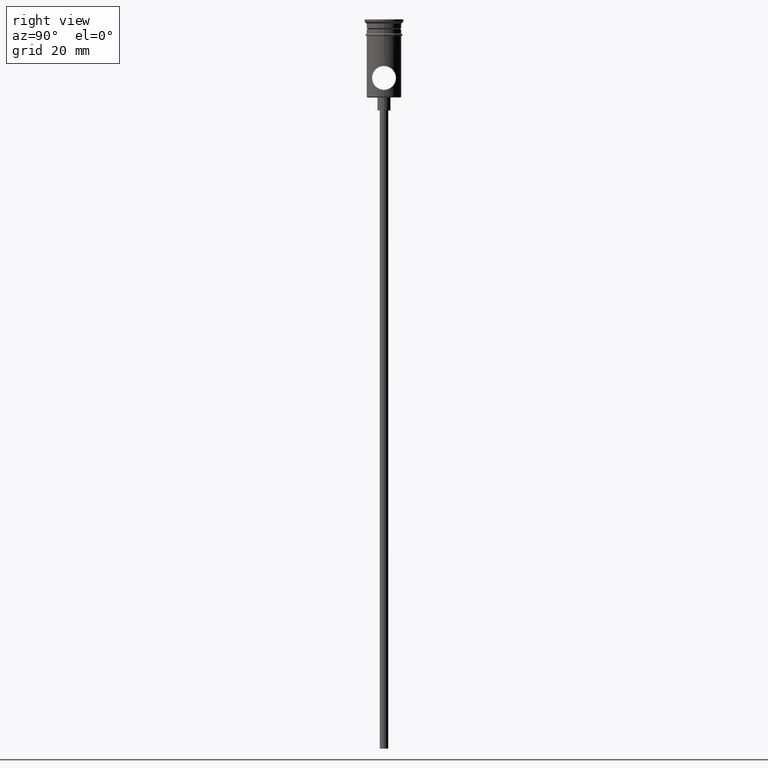
[diagram: clean part render]
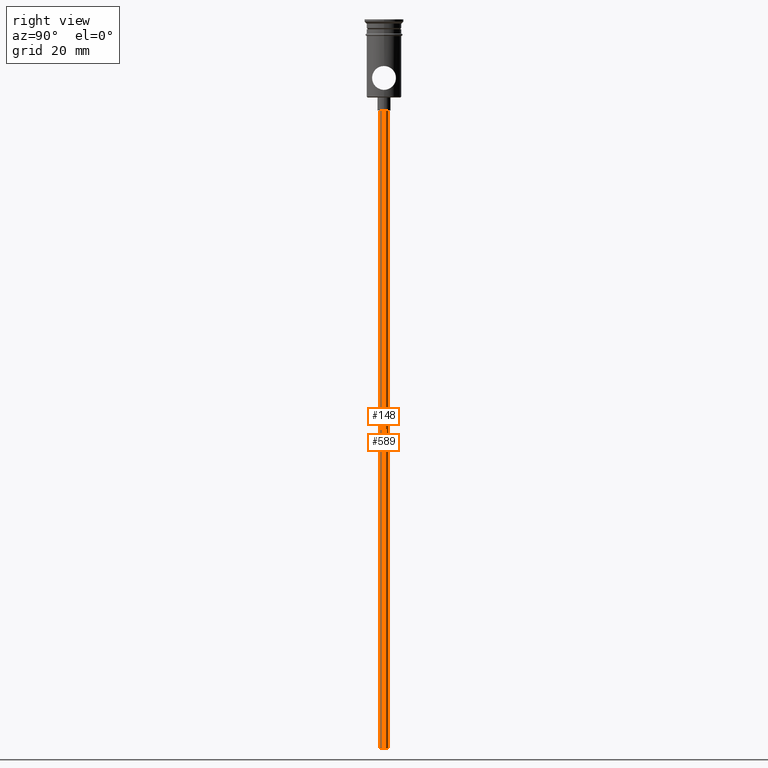
[diagram: same view with one multi-face feature highlighted, each face labeled with its STEP entity id]
A machine part, right view. The highlighted faces form ONE feature: a constant-radius fillet chain: 2 tangent blend faces with common blend radius 1 mm. The faces share edges in the B-rep.
Their STEP definitions:
[1] entity #589 (Cylinder):
#6 = CARTESIAN_POINT ( 'NONE',  ( -0.9999999999999997780, 1.224646799147352961E-16, -167.9999999999999716 ) ) ;
#9 = VERTEX_POINT ( 'NONE', #6 ) ;
#58 = ORIENTED_EDGE ( 'NONE', *, *, #1396, .F. ) ;
#86 = DIRECTION ( 'NONE',  ( -0.000000000000000000, -0.000000000000000000, 1.000000000000000000 ) ) ;
#133 = ORIENTED_EDGE ( 'NONE', *, *, #178, .F. ) ;
#156 = CARTESIAN_POINT ( 'NONE',  ( 0.000000000000000000, 0.000000000000000000, -167.9999999999999716 ) ) ;
#162 = DIRECTION ( 'NONE',  ( -1.000000000000000000, 0.000000000000000000, 0.000000000000000000 ) ) ;
#170 = VERTEX_POINT ( 'NONE', #1039 ) ;
#178 = EDGE_CURVE ( 'NONE', #680, #536, #483, .T. ) ;
#206 = CARTESIAN_POINT ( 'NONE',  ( -0.9999999999999997780, 1.224646799147352961E-16, -167.9999999999999716 ) ) ;
#233 = AXIS2_PLACEMENT_3D ( 'NONE', #156, #596, #1034 ) ;
#301 = LINE ( 'NONE', #206, #666 ) ;
#358 = FACE_OUTER_BOUND ( 'NONE', #1343, .T. ) ;
#458 = AXIS2_PLACEMENT_3D ( 'NONE', #514, #542, #746 ) ;
#470 = EDGE_CURVE ( 'NONE', #9, #170, #301, .T. ) ;
#483 = LINE ( 'NONE', #934, #579 ) ;
#512 = DIRECTION ( 'NONE',  ( -0.000000000000000000, -0.000000000000000000, 1.000000000000000000 ) ) ;
#514 = CARTESIAN_POINT ( 'NONE',  ( 0.000000000000000000, 0.000000000000000000, -167.9999999999999716 ) ) ;
#536 = VERTEX_POINT ( 'NONE', #661 ) ;
#542 = DIRECTION ( 'NONE',  ( 0.000000000000000000, 0.000000000000000000, -1.000000000000000000 ) ) ;
#579 = VECTOR ( 'NONE', #512, 1000.000000000000000 ) ;
#583 = EDGE_CURVE ( 'NONE', #170, #536, #760, .T. ) ;
#584 = CIRCLE ( 'NONE', #458, 0.9999999999999997780 ) ;
#589 = ADVANCED_FACE ( 'NONE', ( #358 ), #1136, .T. ) ;
#596 = DIRECTION ( 'NONE',  ( -0.000000000000000000, -0.000000000000000000, 1.000000000000000000 ) ) ;
#661 = CARTESIAN_POINT ( 'NONE',  ( 0.9999999999999997780, 0.000000000000000000, -20.99999999999999645 ) ) ;
#666 = VECTOR ( 'NONE', #86, 1000.000000000000000 ) ;
#680 = VERTEX_POINT ( 'NONE', #945 ) ;
#689 = AXIS2_PLACEMENT_3D ( 'NONE', #817, #1347, #162 ) ;
#746 = DIRECTION ( 'NONE',  ( -1.000000000000000000, 0.000000000000000000, 0.000000000000000000 ) ) ;
#760 = CIRCLE ( 'NONE', #689, 0.9999999999999997780 ) ;
#773 = ORIENTED_EDGE ( 'NONE', *, *, #470, .T. ) ;
#817 = CARTESIAN_POINT ( 'NONE',  ( 0.000000000000000000, 0.000000000000000000, -20.99999999999999645 ) ) ;
#934 = CARTESIAN_POINT ( 'NONE',  ( 0.9999999999999997780, 0.000000000000000000, -167.9999999999999716 ) ) ;
#945 = CARTESIAN_POINT ( 'NONE',  ( 0.9999999999999997780, 0.000000000000000000, -167.9999999999999716 ) ) ;
#1034 = DIRECTION ( 'NONE',  ( 1.000000000000000000, 0.000000000000000000, 0.000000000000000000 ) ) ;
#1039 = CARTESIAN_POINT ( 'NONE',  ( -0.9999999999999997780, 1.224646799147352961E-16, -20.99999999999999645 ) ) ;
#1136 = CYLINDRICAL_SURFACE ( 'NONE', #233, 0.9999999999999997780 ) ;
#1292 = ORIENTED_EDGE ( 'NONE', *, *, #583, .T. ) ;
#1343 = EDGE_LOOP ( 'NONE', ( #58, #773, #1292, #133 ) ) ;
#1347 = DIRECTION ( 'NONE',  ( 0.000000000000000000, 0.000000000000000000, -1.000000000000000000 ) ) ;
#1396 = EDGE_CURVE ( 'NONE', #9, #680, #584, .T. ) ;
[2] entity #148 (Cylinder):
#6 = CARTESIAN_POINT ( 'NONE',  ( -0.9999999999999997780, 1.224646799147352961E-16, -167.9999999999999716 ) ) ;
#9 = VERTEX_POINT ( 'NONE', #6 ) ;
#36 = AXIS2_PLACEMENT_3D ( 'NONE', #704, #372, #166 ) ;
#55 = DIRECTION ( 'NONE',  ( 1.000000000000000000, 0.000000000000000000, 0.000000000000000000 ) ) ;
#61 = CARTESIAN_POINT ( 'NONE',  ( 0.000000000000000000, 0.000000000000000000, -167.9999999999999716 ) ) ;
#86 = DIRECTION ( 'NONE',  ( -0.000000000000000000, -0.000000000000000000, 1.000000000000000000 ) ) ;
#148 = ADVANCED_FACE ( 'NONE', ( #834 ), #1255, .T. ) ;
#166 = DIRECTION ( 'NONE',  ( -1.000000000000000000, 0.000000000000000000, 0.000000000000000000 ) ) ;
#170 = VERTEX_POINT ( 'NONE', #1039 ) ;
#178 = EDGE_CURVE ( 'NONE', #680, #536, #483, .T. ) ;
#179 = ORIENTED_EDGE ( 'NONE', *, *, #388, .F. ) ;
#186 = ORIENTED_EDGE ( 'NONE', *, *, #654, .T. ) ;
#206 = CARTESIAN_POINT ( 'NONE',  ( -0.9999999999999997780, 1.224646799147352961E-16, -167.9999999999999716 ) ) ;
#257 = CIRCLE ( 'NONE', #36, 0.9999999999999997780 ) ;
#274 = DIRECTION ( 'NONE',  ( -0.000000000000000000, -0.000000000000000000, 1.000000000000000000 ) ) ;
#301 = LINE ( 'NONE', #206, #666 ) ;
#372 = DIRECTION ( 'NONE',  ( 0.000000000000000000, 0.000000000000000000, -1.000000000000000000 ) ) ;
#388 = EDGE_CURVE ( 'NONE', #680, #9, #257, .T. ) ;
#425 = AXIS2_PLACEMENT_3D ( 'NONE', #854, #1076, #616 ) ;
#470 = EDGE_CURVE ( 'NONE', #9, #170, #301, .T. ) ;
#483 = LINE ( 'NONE', #934, #579 ) ;
#512 = DIRECTION ( 'NONE',  ( -0.000000000000000000, -0.000000000000000000, 1.000000000000000000 ) ) ;
#536 = VERTEX_POINT ( 'NONE', #661 ) ;
#579 = VECTOR ( 'NONE', #512, 1000.000000000000000 ) ;
#616 = DIRECTION ( 'NONE',  ( -1.000000000000000000, 0.000000000000000000, 0.000000000000000000 ) ) ;
#654 = EDGE_CURVE ( 'NONE', #536, #170, #1216, .T. ) ;
#661 = CARTESIAN_POINT ( 'NONE',  ( 0.9999999999999997780, 0.000000000000000000, -20.99999999999999645 ) ) ;
#666 = VECTOR ( 'NONE', #86, 1000.000000000000000 ) ;
#680 = VERTEX_POINT ( 'NONE', #945 ) ;
#704 = CARTESIAN_POINT ( 'NONE',  ( 0.000000000000000000, 0.000000000000000000, -167.9999999999999716 ) ) ;
#834 = FACE_OUTER_BOUND ( 'NONE', #888, .T. ) ;
#854 = CARTESIAN_POINT ( 'NONE',  ( 0.000000000000000000, 0.000000000000000000, -20.99999999999999645 ) ) ;
#888 = EDGE_LOOP ( 'NONE', ( #1095, #179, #894, #186 ) ) ;
#894 = ORIENTED_EDGE ( 'NONE', *, *, #178, .T. ) ;
#934 = CARTESIAN_POINT ( 'NONE',  ( 0.9999999999999997780, 0.000000000000000000, -167.9999999999999716 ) ) ;
#945 = CARTESIAN_POINT ( 'NONE',  ( 0.9999999999999997780, 0.000000000000000000, -167.9999999999999716 ) ) ;
#1039 = CARTESIAN_POINT ( 'NONE',  ( -0.9999999999999997780, 1.224646799147352961E-16, -20.99999999999999645 ) ) ;
#1076 = DIRECTION ( 'NONE',  ( 0.000000000000000000, 0.000000000000000000, -1.000000000000000000 ) ) ;
#1095 = ORIENTED_EDGE ( 'NONE', *, *, #470, .F. ) ;
#1216 = CIRCLE ( 'NONE', #425, 0.9999999999999997780 ) ;
#1255 = CYLINDRICAL_SURFACE ( 'NONE', #1401, 0.9999999999999997780 ) ;
#1401 = AXIS2_PLACEMENT_3D ( 'NONE', #61, #274, #55 ) ;